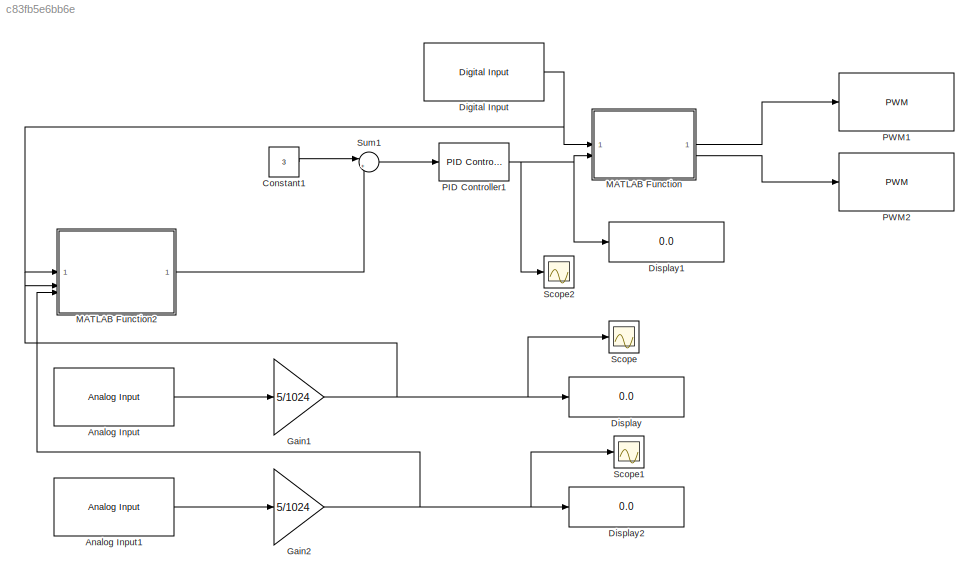
MODEL slx_c83fb5e6bb6e
KIND model
CONFIG AbsTol = auto
CONFIG EnableMultiTasking = on
CONFIG FixedStep = 0.0001
CONFIG MaxStep = auto
CONFIG MinStep = auto
CONFIG RelTol = 1e-3
CONFIG SampleTimeConstraint = Unconstrained
CONFIG SolverName = FixedStepAuto
CONFIG StartTime = 0.0
CONFIG StopTime = inf
BLOCK [Reference] Analog Input  REF=arduinolib/Analog Input
  SourceBlock = arduinolib/Analog Input
  SourceType = Arduino Analog Input
BLOCK [Reference] Analog Input1  REF=arduinolib/Analog Input
  SourceBlock = arduinolib/Analog Input
  SourceType = Arduino Analog Input
BLOCK [Constant] Constant1
  Value = 3
BLOCK [Reference] Digital Input  REF=arduinolib/Digital Input
  SourceBlock = arduinolib/Digital Input
  SourceType = Arduino Digital Input
BLOCK [Display] Display
  Decimation = 1
BLOCK [Display] Display1
  Decimation = 1
BLOCK [Display] Display2
  Decimation = 1
BLOCK [Gain] Gain1
  Gain = 5/1024
BLOCK [Gain] Gain2
  Gain = 5/1024
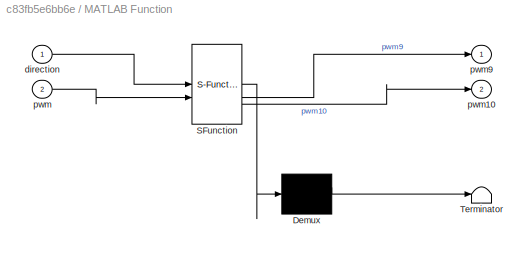
BLOCK [SubSystem] MATLAB Function
  ErrorFcn = Stateflow.Translate.translate
  PermitHierarchicalResolution = ExplicitOnly
  SFBlockType = MATLAB Function
  TreatAsAtomicUnit = on
BLOCK [Demux] MATLAB Function/ Demux 
  Outputs = 1
BLOCK [S-Function] MATLAB Function/ SFunction 
  EnableBusSupport = on
  FunctionName = sf_sfun
  PortCounts = [2 3]
  SFcnIsStateOwnerBlock = off
  SFunctionDeploymentMode = off
  Tag = Stateflow S-Function 2
BLOCK [Terminator] MATLAB Function/ Terminator 
BLOCK [Inport] MATLAB Function/direction
BLOCK [Inport] MATLAB Function/pwm
  Port = 2
BLOCK [Outport] MATLAB Function/pwm10
  Port = 2
BLOCK [Outport] MATLAB Function/pwm9
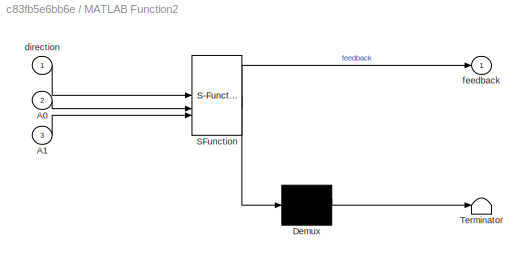
BLOCK [SubSystem] MATLAB Function2
  ErrorFcn = Stateflow.Translate.translate
  PermitHierarchicalResolution = ExplicitOnly
  SFBlockType = MATLAB Function
  TreatAsAtomicUnit = on
BLOCK [Demux] MATLAB Function2/ Demux 
  Outputs = 1
BLOCK [S-Function] MATLAB Function2/ SFunction 
  EnableBusSupport = on
  FunctionName = sf_sfun
  PortCounts = [3 2]
  SFcnIsStateOwnerBlock = off
  SFunctionDeploymentMode = off
  Tag = Stateflow S-Function 3
BLOCK [Terminator] MATLAB Function2/ Terminator 
BLOCK [Inport] MATLAB Function2/A0
  Port = 2
BLOCK [Inport] MATLAB Function2/A1
  Port = 3
BLOCK [Inport] MATLAB Function2/direction
BLOCK [Outport] MATLAB Function2/feedback
BLOCK [Reference] PID Controller1  REF=slpidlib/PID Controller
  LibrarySourceBlock = simulink/Continuous/PID Controller
  SourceBlock = slpidlib/PID Controller
  SourceType = PID 1dof
BLOCK [Reference] PWM1  REF=arduinoavrlib/PWM
  LibrarySourceBlock = arduinolib/PWM
  SourceBlock = arduinoavrlib/PWM
  SourceType = codertarget.arduinobase.internal.arduino_AVRPWMOutput
BLOCK [Reference] PWM2  REF=arduinoavrlib/PWM
  LibrarySourceBlock = arduinolib/PWM
  SourceBlock = arduinoavrlib/PWM
  SourceType = codertarget.arduinobase.internal.arduino_AVRPWMOutput
BLOCK [Scope] Scope
  Floating = off
  NumInputPorts = 1
  ScopeSpecificationString = Simulink.scopes.TimeScopeBlockCfg('CurrentConfiguration', extmgr.ConfigurationSet(extmgr.Configuration('Core','General UI',true),extmgr.Configuration('Core','Source UI',true),extmgr.Configuration('Sources','WiredSimulink',true,'DataLoggingVariableName','ScopeData1'),extmgr.Configuration('Visuals','Time Domain',true,'SerializedDisplays',{struct('MinYLimReal','-0.62439','MaxYLimReal','5.61951','YLab...<+1556ch>
BLOCK [Scope] Scope1
  Floating = off
  NumInputPorts = 1
  ScopeSpecificationString = Simulink.scopes.TimeScopeBlockCfg('CurrentConfiguration', extmgr.ConfigurationSet(extmgr.Configuration('Core','General UI',true),extmgr.Configuration('Core','Source UI',true),extmgr.Configuration('Sources','WiredSimulink',true),extmgr.Configuration('Visuals','Time Domain',true,'SerializedDisplays',{struct('MinYLimReal','-0.45044','MaxYLimReal','4.05396','YLabelReal','','MinYLimMag','0.00000','MaxY...<+1495ch>
BLOCK [Scope] Scope2
  Floating = off
  NumInputPorts = 1
  ScopeSpecificationString = Simulink.scopes.TimeScopeBlockCfg('CurrentConfiguration', extmgr.ConfigurationSet(extmgr.Configuration('Core','General UI',true),extmgr.Configuration('Core','Source UI',true),extmgr.Configuration('Sources','WiredSimulink',true,'DataLoggingVariableName','ScopeData1'),extmgr.Configuration('Visuals','Time Domain',true,'SerializedDisplays',{struct('MinYLimReal','-0.62439','MaxYLimReal','5.61951','YLab...<+1561ch>
BLOCK [Sum] Sum1
  Inputs = |+-
LINE Analog Input1:1 -> Gain2:1
LINE Analog Input:1 -> Gain1:1
LINE Constant1:1 -> Sum1:1
NET Digital Input:1 -> MATLAB Function2:1, MATLAB Function:1
NET Gain1:1 -> Display:1, MATLAB Function2:2, Scope:1
NET Gain2:1 -> Display2:1, MATLAB Function2:3, Scope1:1
LINE MATLAB Function2:1 -> Sum1:2
LINE MATLAB Function:1 -> PWM1:1
LINE MATLAB Function:2 -> PWM2:1
NET PID Controller1:1 -> Display1:1, MATLAB Function:2, Scope2:1
LINE Sum1:1 -> PID Controller1:1
note: NET lines group one-source signal fan-out (src -> all destinations, sorted); 1:1 wires keep LINE
CHART MATLAB Function states=1 transitions=1
  STATE_LABEL 'eML_blk_kernel()'
  STATE_LABEL 'SCRIPT:\nfunction [pwm9, pwm10] = fcn(direction, pwm)\n    if direction\n        pwm9 = pwm;\n        pwm10 = 0;\n    else\n        pwm10 = pwm;\n        pwm9 = 0;\n    end\nend'
CHART MATLAB Function2 states=1 transitions=1
  STATE_LABEL 'eML_blk_kernel()'
  STATE_LABEL 'SCRIPT:\nfunction feedback = fcn(direction, A0, A1)\n    if direction\n        feedback = A1;\n    else\n        feedback = A0;\n    end\nend'
CHART  states=0 transitions=0
CHART  states=0 transitions=0
